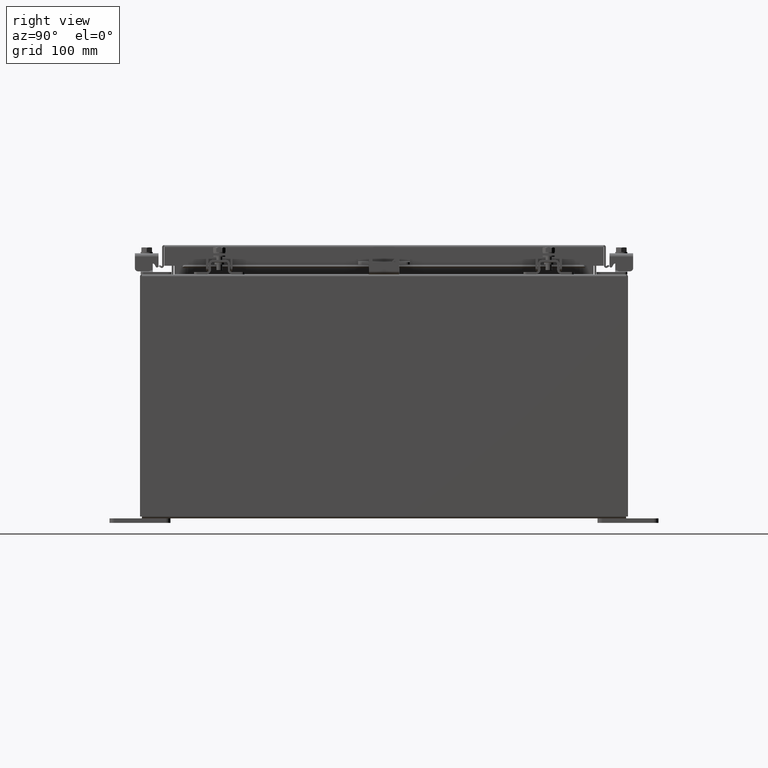
[diagram: clean part render]
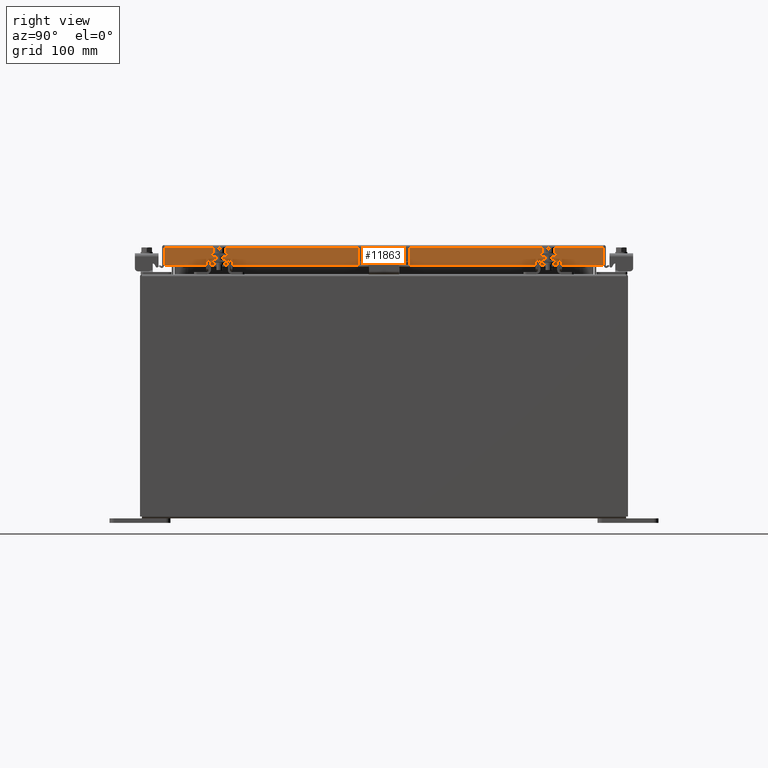
[diagram: same view with one face highlighted and labeled with its STEP entity id]
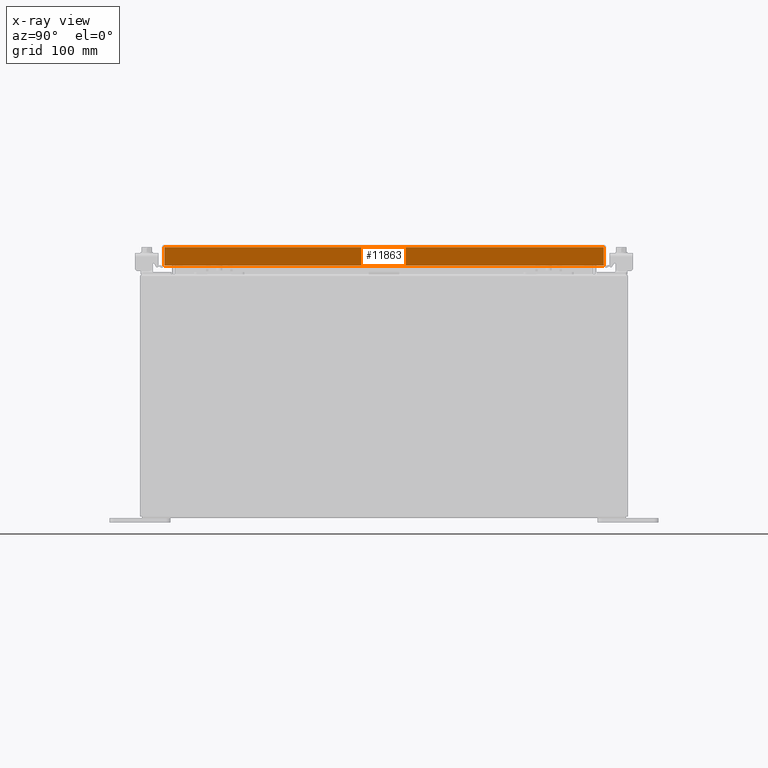
[diagram: x-ray of the same camera — body ghosted, the highlighted face saturated]
A machine part, right view. The second image highlights one B-rep face of the part: STEP entity #11863.
The next image is the same camera in x-ray: the body ghosted, the highlighted face saturated — about 0% of this face is hidden behind the body in this view.
In plain terms, the highlighted planar face has unit normal (1, 0, 0).
Its self-contained STEP definition (entity closure, byte-faithful):
#142 = PLANE ( 'NONE',  #29128 ) ;
#940 = DIRECTION ( 'NONE',  ( 0.0000000000000000000, -1.000000000000000000, 0.0000000000000000000 ) ) ;
#1530 = ORIENTED_EDGE ( 'NONE', *, *, #22466, .F. ) ;
#1700 = CARTESIAN_POINT ( 'NONE',  ( 7.078000000000004700, -9.005157864376261800, -0.8499999999999996400 ) ) ;
#1989 = VECTOR ( 'NONE', #940, 39.37007874015748100 ) ;
#2059 = EDGE_CURVE ( 'NONE', #22926, #3872, #3601, .T. ) ;
#2590 = LINE ( 'NONE', #28921, #8625 ) ;
#3367 = VERTEX_POINT ( 'NONE', #1700 ) ;
#3601 = LINE ( 'NONE', #21828, #15734 ) ;
#3872 = VERTEX_POINT ( 'NONE', #24697 ) ;
#4694 = EDGE_CURVE ( 'NONE', #23478, #3367, #5936, .T. ) ;
#4807 = CARTESIAN_POINT ( 'NONE',  ( 7.078000000000004700, -9.093999999999999400, -0.8499999999999996400 ) ) ;
#5439 = EDGE_LOOP ( 'NONE', ( #12466, #25875, #1530, #5518, #21512, #10256 ) ) ;
#5518 = ORIENTED_EDGE ( 'NONE', *, *, #29330, .F. ) ;
#5936 = LINE ( 'NONE', #4807, #29426 ) ;
#7756 = CARTESIAN_POINT ( 'NONE',  ( 7.078000000000004700, -9.093999999999999400, -0.8499999999999996400 ) ) ;
#8484 = LINE ( 'NONE', #23202, #13855 ) ;
#8508 = DIRECTION ( 'NONE',  ( 1.000000000000000000, 0.0000000000000000000, 2.818880942772360100E-015 ) ) ;
#8625 = VECTOR ( 'NONE', #15335, 39.37007874015748100 ) ;
#9321 = CARTESIAN_POINT ( 'NONE',  ( 7.078000000000002100, -9.005157864376267100, -0.08770000000000007000 ) ) ;
#10256 = ORIENTED_EDGE ( 'NONE', *, *, #26907, .T. ) ;
#11107 = CARTESIAN_POINT ( 'NONE',  ( 7.078000000000002100, 0.0000000000000000000, 2.021285296895435400E-014 ) ) ;
#11863 = ADVANCED_FACE ( 'NONE', ( #27778 ), #142, .T. ) ;
#12100 = DIRECTION ( 'NONE',  ( 0.0000000000000000000, -1.000000000000000000, 0.0000000000000000000 ) ) ;
#12466 = ORIENTED_EDGE ( 'NONE', *, *, #15819, .F. ) ;
#13855 = VECTOR ( 'NONE', #27565, 39.37007874015748100 ) ;
#14662 = DIRECTION ( 'NONE',  ( 0.0000000000000000000, -1.000000000000000000, 0.0000000000000000000 ) ) ;
#14831 = LINE ( 'NONE', #7756, #26165 ) ;
#14884 = CARTESIAN_POINT ( 'NONE',  ( 7.078000000000004700, 9.005157864376274200, -0.8499999999999996400 ) ) ;
#15335 = DIRECTION ( 'NONE',  ( 0.0000000000000000000, -1.000000000000000000, 0.0000000000000000000 ) ) ;
#15658 = DIRECTION ( 'NONE',  ( 2.818880942772360100E-015, 0.0000000000000000000, -1.000000000000000000 ) ) ;
#15734 = VECTOR ( 'NONE', #28914, 39.37007874015748100 ) ;
#15819 = EDGE_CURVE ( 'NONE', #3367, #18176, #8484, .T. ) ;
#18176 = VERTEX_POINT ( 'NONE', #9321 ) ;
#19164 = CARTESIAN_POINT ( 'NONE',  ( 7.078000000000002100, 0.0000000000000000000, -0.08770000000000007000 ) ) ;
#20165 = LINE ( 'NONE', #19164, #1989 ) ;
#21512 = ORIENTED_EDGE ( 'NONE', *, *, #2059, .T. ) ;
#21828 = CARTESIAN_POINT ( 'NONE',  ( 7.078000000000002100, 9.005157864376268900, 8.309553424256680500E-014 ) ) ;
#22466 = EDGE_CURVE ( 'NONE', #26825, #23478, #2590, .T. ) ;
#22926 = VERTEX_POINT ( 'NONE', #14884 ) ;
#23202 = CARTESIAN_POINT ( 'NONE',  ( 7.078000000000002100, -9.005157864376267100, -0.07469999999999978000 ) ) ;
#23459 = CARTESIAN_POINT ( 'NONE',  ( 7.078000000000001200, 8.255157864376270600, -0.8500000000000024200 ) ) ;
#23478 = VERTEX_POINT ( 'NONE', #23772 ) ;
#23772 = CARTESIAN_POINT ( 'NONE',  ( 7.078000000000001200, -8.255157864376260000, -0.8500000000000024200 ) ) ;
#24697 = CARTESIAN_POINT ( 'NONE',  ( 7.078000000000002100, 9.005157864376270600, -0.08770000000000007000 ) ) ;
#25875 = ORIENTED_EDGE ( 'NONE', *, *, #4694, .F. ) ;
#26165 = VECTOR ( 'NONE', #14662, 39.37007874015748100 ) ;
#26825 = VERTEX_POINT ( 'NONE', #23459 ) ;
#26907 = EDGE_CURVE ( 'NONE', #3872, #18176, #20165, .T. ) ;
#27565 = DIRECTION ( 'NONE',  ( -2.818880942772360100E-015, -6.982962677686265900E-015, 1.000000000000000000 ) ) ;
#27778 = FACE_OUTER_BOUND ( 'NONE', #5439, .T. ) ;
#28914 = DIRECTION ( 'NONE',  ( -2.818880942772360100E-015, -6.982962677686265900E-015, 1.000000000000000000 ) ) ;
#28921 = CARTESIAN_POINT ( 'NONE',  ( 7.078000000000001200, 8.255157864376270600, -0.8500000000000024200 ) ) ;
#29128 = AXIS2_PLACEMENT_3D ( 'NONE', #11107, #8508, #15658 ) ;
#29330 = EDGE_CURVE ( 'NONE', #22926, #26825, #14831, .T. ) ;
#29426 = VECTOR ( 'NONE', #12100, 39.37007874015748100 ) ;